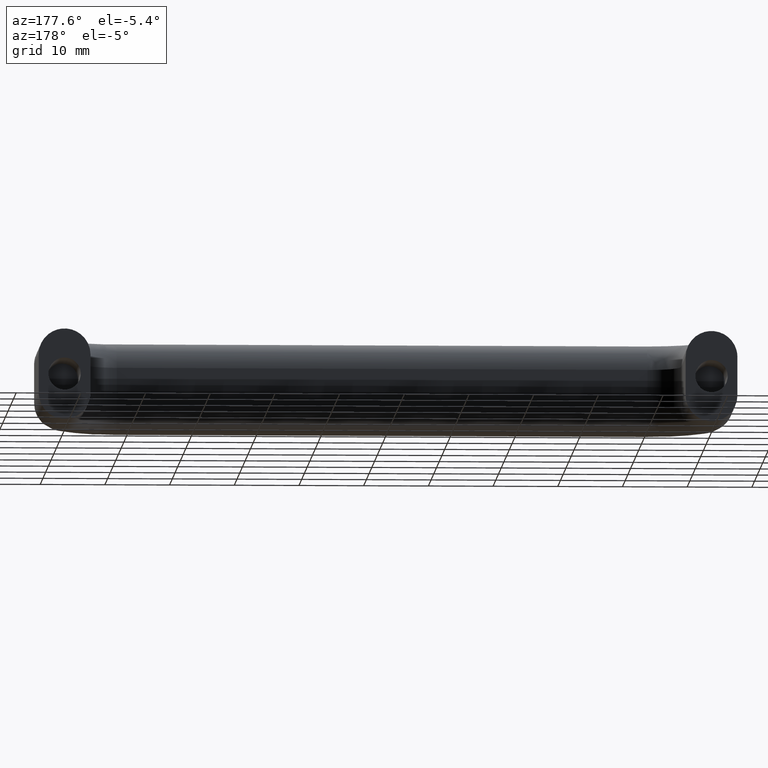
[diagram: clean part render]
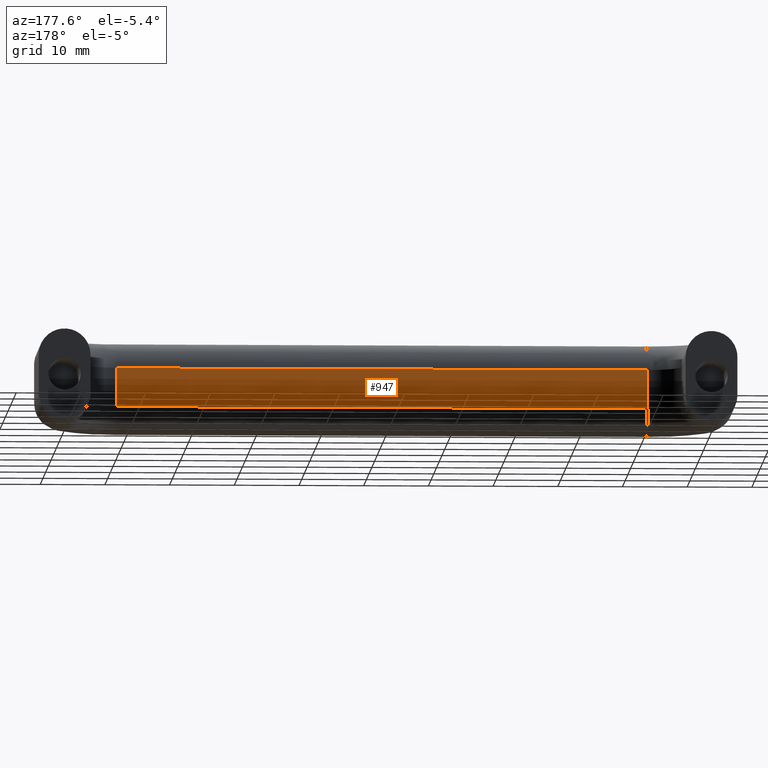
[diagram: same view with one face highlighted and labeled with its STEP entity id]
A machine part, auxiliary view. The second image highlights one B-rep face of the part: STEP entity #947.
In plain terms, the highlighted face is a freeform B-spline surface patch.
Its self-contained STEP definition (entity closure, byte-faithful):
#649=CARTESIAN_POINT('',(91.0,-22.0,-3.0));
#650=VERTEX_POINT('',#649);
#756=CARTESIAN_POINT('',(91.0,-22.0,3.0));
#757=VERTEX_POINT('',#756);
#806=CARTESIAN_POINT('',(91.0,-22.0,-3.0));
#807=CARTESIAN_POINT('',(91.0,-22.0,3.0));
#808=QUASI_UNIFORM_CURVE('',1,(#806,#807),.UNSPECIFIED.,.F.,.U.);
#809=EDGE_CURVE('',#650,#757,#808,.T.);
#840=CARTESIAN_POINT('',(9.0,-22.0,-3.0));
#841=VERTEX_POINT('',#840);
#857=CARTESIAN_POINT('',(9.0,-22.0,-3.0));
#858=CARTESIAN_POINT('',(91.0,-22.0,-3.0));
#859=QUASI_UNIFORM_CURVE('',1,(#857,#858),.UNSPECIFIED.,.F.,.U.);
#860=EDGE_CURVE('',#841,#650,#859,.T.);
#907=CARTESIAN_POINT('',(9.0,-22.0,3.0));
#908=VERTEX_POINT('',#907);
#909=CARTESIAN_POINT('',(9.0,-22.0,3.0));
#910=CARTESIAN_POINT('',(91.0,-22.0,3.0));
#911=QUASI_UNIFORM_CURVE('',1,(#909,#910),.UNSPECIFIED.,.F.,.U.);
#912=EDGE_CURVE('',#908,#757,#911,.T.);
#932=CARTESIAN_POINT('',(4.904100158931906,-22.0,-3.299699988370836));
#933=CARTESIAN_POINT('',(4.904100158931906,-22.0,3.299700149303377));
#934=CARTESIAN_POINT('',(95.095902040479473,-22.0,-3.299699988370836));
#935=CARTESIAN_POINT('',(95.095902040479473,-22.0,3.299700149303377));
#936=B_SPLINE_SURFACE_WITH_KNOTS('',1,1,((#932,#934),(#933,#935)),.UNSPECIFIED.,.F.,.F.,.U.,(2,2),(2,2),(0.0,6.599400137674213),(0.0,90.191801881547562),.UNSPECIFIED.);
#937=ORIENTED_EDGE('',*,*,#912,.T.);
#938=ORIENTED_EDGE('',*,*,#809,.F.);
#939=ORIENTED_EDGE('',*,*,#860,.F.);
#940=CARTESIAN_POINT('',(9.0,-22.0,-3.0));
#941=CARTESIAN_POINT('',(9.0,-22.0,3.0));
#942=QUASI_UNIFORM_CURVE('',1,(#940,#941),.UNSPECIFIED.,.F.,.U.);
#943=EDGE_CURVE('',#841,#908,#942,.T.);
#944=ORIENTED_EDGE('',*,*,#943,.T.);
#945=EDGE_LOOP('',(#937,#938,#939,#944));
#946=FACE_OUTER_BOUND('',#945,.T.);
#947=ADVANCED_FACE('',(#946),#936,.T.);